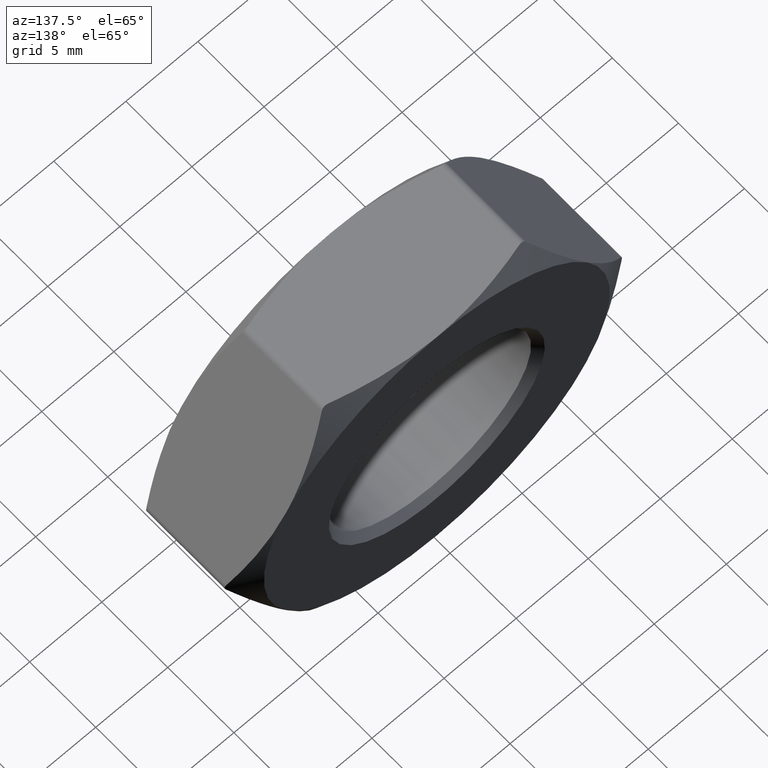
[diagram: clean part render]
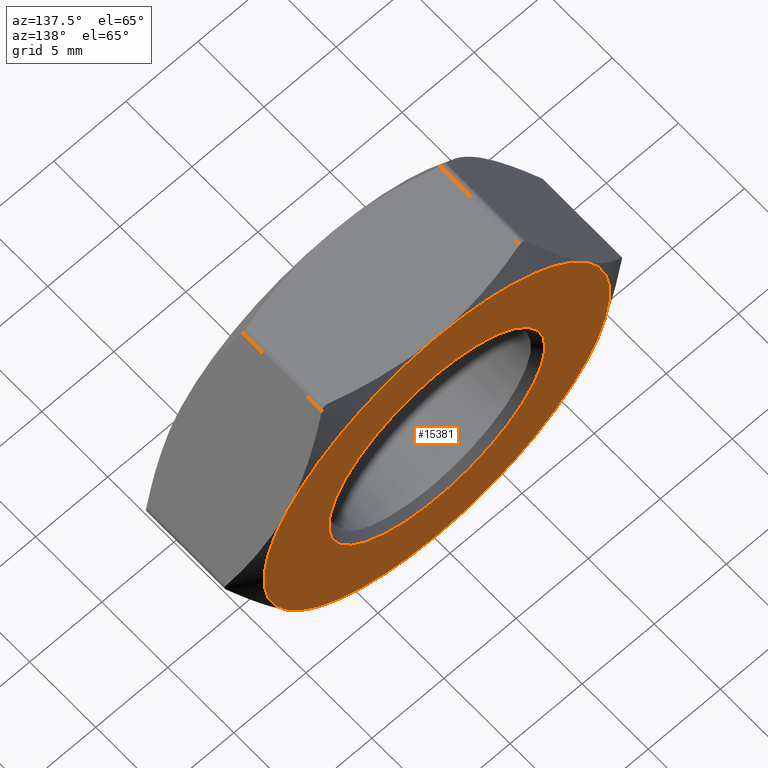
[diagram: same view with one face highlighted and labeled with its STEP entity id]
A machine part, auxiliary view. The second image highlights one B-rep face of the part: STEP entity #15381.
In plain terms, the highlighted planar face has unit normal (0, 1, 0).
Its self-contained STEP definition (entity closure, byte-faithful):
#42 = EDGE_CURVE ( 'NONE', #5527, #7789, #9337, .T. ) ;
#157 = DIRECTION ( 'NONE',  ( 0.000000000000000000, 0.000000000000000000, 1.000000000000000000 ) ) ;
#365 = ORIENTED_EDGE ( 'NONE', *, *, #42, .F. ) ;
#646 = ORIENTED_EDGE ( 'NONE', *, *, #4004, .F. ) ;
#653 = DIRECTION ( 'NONE',  ( 0.000000000000000000, 0.000000000000000000, 1.000000000000000000 ) ) ;
#723 = DIRECTION ( 'NONE',  ( 0.000000000000000000, -0.000000000000000000, 1.000000000000000000 ) ) ;
#732 = CARTESIAN_POINT ( 'NONE',  ( -10.39230484541326582, 4.000000000000000000, -6.000000000000000000 ) ) ;
#913 = AXIS2_PLACEMENT_3D ( 'NONE', #4329, #6747, #10473 ) ;
#946 = CARTESIAN_POINT ( 'NONE',  ( -4.494986686778388380E-17, 4.000000000000000000, 2.335663596253788619E-16 ) ) ;
#1358 = CARTESIAN_POINT ( 'NONE',  ( -4.494986686778388380E-17, 4.000000000000000000, 2.335663596253788619E-16 ) ) ;
#1531 = ORIENTED_EDGE ( 'NONE', *, *, #10868, .F. ) ;
#1635 = CIRCLE ( 'NONE', #913, 7.500000000000000888 ) ;
#1719 = CARTESIAN_POINT ( 'NONE',  ( -10.39230484541326405, 4.000000000000000000, 6.000000000000001776 ) ) ;
#1939 = DIRECTION ( 'NONE',  ( 0.000000000000000000, 1.000000000000000000, 0.000000000000000000 ) ) ;
#1991 = CARTESIAN_POINT ( 'NONE',  ( -4.494986686778388380E-17, 4.000000000000000000, -12.00000000000000178 ) ) ;
#2122 = ORIENTED_EDGE ( 'NONE', *, *, #5127, .F. ) ;
#2466 = CARTESIAN_POINT ( 'NONE',  ( 10.39230484541326405, 4.000000000000000000, -6.000000000000004441 ) ) ;
#3074 = EDGE_LOOP ( 'NONE', ( #5300 ) ) ;
#3082 = AXIS2_PLACEMENT_3D ( 'NONE', #12515, #3167, #653 ) ;
#3167 = DIRECTION ( 'NONE',  ( -0.000000000000000000, -1.000000000000000000, -0.000000000000000000 ) ) ;
#3552 = DIRECTION ( 'NONE',  ( -0.000000000000000000, -1.000000000000000000, -0.000000000000000000 ) ) ;
#3649 = CIRCLE ( 'NONE', #11198, 12.00000000000000000 ) ;
#3851 = EDGE_CURVE ( 'NONE', #13708, #5527, #11900, .T. ) ;
#4004 = EDGE_CURVE ( 'NONE', #11921, #13708, #3649, .T. ) ;
#4329 = CARTESIAN_POINT ( 'NONE',  ( 0.000000000000000000, 4.000000000000000000, 0.000000000000000000 ) ) ;
#4391 = AXIS2_PLACEMENT_3D ( 'NONE', #1358, #8514, #157 ) ;
#5127 = EDGE_CURVE ( 'NONE', #7789, #11864, #14832, .T. ) ;
#5300 = ORIENTED_EDGE ( 'NONE', *, *, #13537, .T. ) ;
#5527 = VERTEX_POINT ( 'NONE', #7971 ) ;
#5711 = DIRECTION ( 'NONE',  ( -0.000000000000000000, -1.000000000000000000, -0.000000000000000000 ) ) ;
#6108 = VERTEX_POINT ( 'NONE', #732 ) ;
#6581 = CIRCLE ( 'NONE', #9897, 12.00000000000000000 ) ;
#6723 = ORIENTED_EDGE ( 'NONE', *, *, #7520, .F. ) ;
#6747 = DIRECTION ( 'NONE',  ( -0.000000000000000000, -1.000000000000000000, -0.000000000000000000 ) ) ;
#6985 = ORIENTED_EDGE ( 'NONE', *, *, #3851, .F. ) ;
#7520 = EDGE_CURVE ( 'NONE', #6108, #11921, #6581, .T. ) ;
#7621 = PLANE ( 'NONE',  #8229 ) ;
#7789 = VERTEX_POINT ( 'NONE', #13346 ) ;
#7971 = CARTESIAN_POINT ( 'NONE',  ( 10.39230484541326582, 4.000000000000000000, 5.999999999999998224 ) ) ;
#8219 = DIRECTION ( 'NONE',  ( 1.776356839400250465E-15, 0.000000000000000000, 1.000000000000000000 ) ) ;
#8229 = AXIS2_PLACEMENT_3D ( 'NONE', #14830, #1939, #723 ) ;
#8235 = EDGE_LOOP ( 'NONE', ( #2122, #365, #6985, #646, #6723, #1531 ) ) ;
#8514 = DIRECTION ( 'NONE',  ( -0.000000000000000000, -1.000000000000000000, -0.000000000000000000 ) ) ;
#8598 = DIRECTION ( 'NONE',  ( -0.000000000000000000, -1.000000000000000000, -0.000000000000000000 ) ) ;
#8913 = DIRECTION ( 'NONE',  ( 1.000000000000000000, 0.000000000000000000, 0.000000000000000000 ) ) ;
#9337 = CIRCLE ( 'NONE', #11878, 12.00000000000000178 ) ;
#9698 = CIRCLE ( 'NONE', #4391, 12.00000000000000000 ) ;
#9897 = AXIS2_PLACEMENT_3D ( 'NONE', #946, #5711, #12749 ) ;
#10009 = CARTESIAN_POINT ( 'NONE',  ( -4.494986686778388380E-17, 4.000000000000000000, 0.000000000000000000 ) ) ;
#10027 = FACE_OUTER_BOUND ( 'NONE', #8235, .T. ) ;
#10473 = DIRECTION ( 'NONE',  ( 0.000000000000000000, 0.000000000000000000, 1.000000000000000000 ) ) ;
#10815 = VERTEX_POINT ( 'NONE', #15032 ) ;
#10868 = EDGE_CURVE ( 'NONE', #11864, #6108, #9698, .T. ) ;
#11198 = AXIS2_PLACEMENT_3D ( 'NONE', #13233, #8598, #14452 ) ;
#11864 = VERTEX_POINT ( 'NONE', #1719 ) ;
#11878 = AXIS2_PLACEMENT_3D ( 'NONE', #10009, #13440, #8913 ) ;
#11900 = CIRCLE ( 'NONE', #13262, 12.00000000000000000 ) ;
#11921 = VERTEX_POINT ( 'NONE', #1991 ) ;
#12515 = CARTESIAN_POINT ( 'NONE',  ( -4.494986686778388380E-17, 4.000000000000000000, 2.335663596253788619E-16 ) ) ;
#12749 = DIRECTION ( 'NONE',  ( 1.776356839400250465E-15, 0.000000000000000000, 1.000000000000000000 ) ) ;
#13203 = FACE_BOUND ( 'NONE', #3074, .T. ) ;
#13233 = CARTESIAN_POINT ( 'NONE',  ( -4.494986686778388380E-17, 4.000000000000000000, 2.335663596253788619E-16 ) ) ;
#13262 = AXIS2_PLACEMENT_3D ( 'NONE', #15265, #3552, #8219 ) ;
#13346 = CARTESIAN_POINT ( 'NONE',  ( -4.494986686778388380E-17, 4.000000000000000000, 12.00000000000000178 ) ) ;
#13440 = DIRECTION ( 'NONE',  ( 1.123746671694597095E-17, -1.000000000000000000, -0.000000000000000000 ) ) ;
#13537 = EDGE_CURVE ( 'NONE', #10815, #10815, #1635, .T. ) ;
#13708 = VERTEX_POINT ( 'NONE', #2466 ) ;
#14452 = DIRECTION ( 'NONE',  ( 0.000000000000000000, 0.000000000000000000, 1.000000000000000000 ) ) ;
#14830 = CARTESIAN_POINT ( 'NONE',  ( 0.000000000000000000, 4.000000000000000000, 0.000000000000000000 ) ) ;
#14832 = CIRCLE ( 'NONE', #3082, 12.00000000000000000 ) ;
#15032 = CARTESIAN_POINT ( 'NONE',  ( 0.000000000000000000, 4.000000000000000000, 7.500000000000000888 ) ) ;
#15265 = CARTESIAN_POINT ( 'NONE',  ( -4.494986686778388380E-17, 4.000000000000000000, 2.335663596253788619E-16 ) ) ;
#15381 = ADVANCED_FACE ( 'NONE', ( #13203, #10027 ), #7621, .T. ) ;